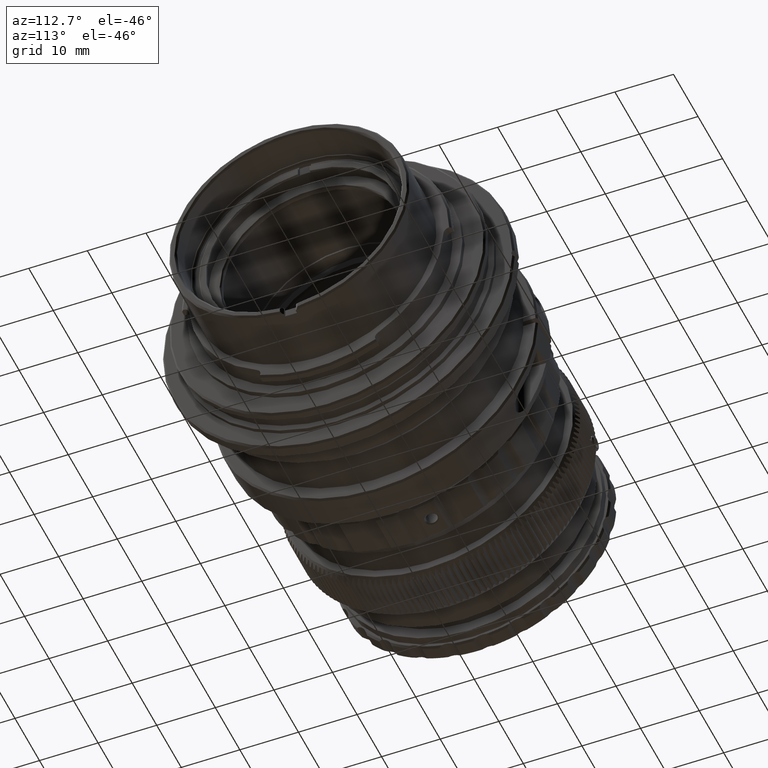
[diagram: clean part render]
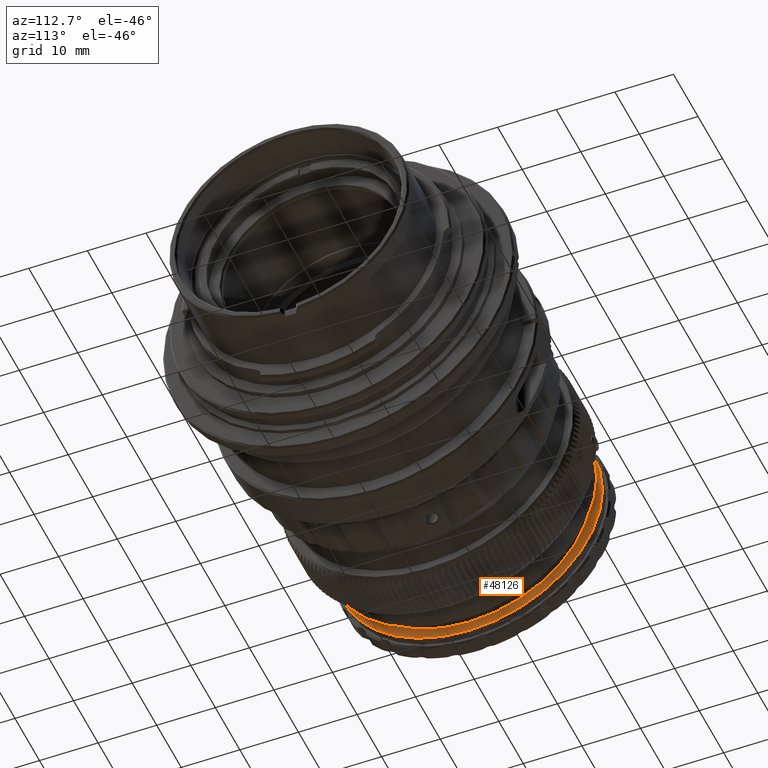
[diagram: same view with one face highlighted and labeled with its STEP entity id]
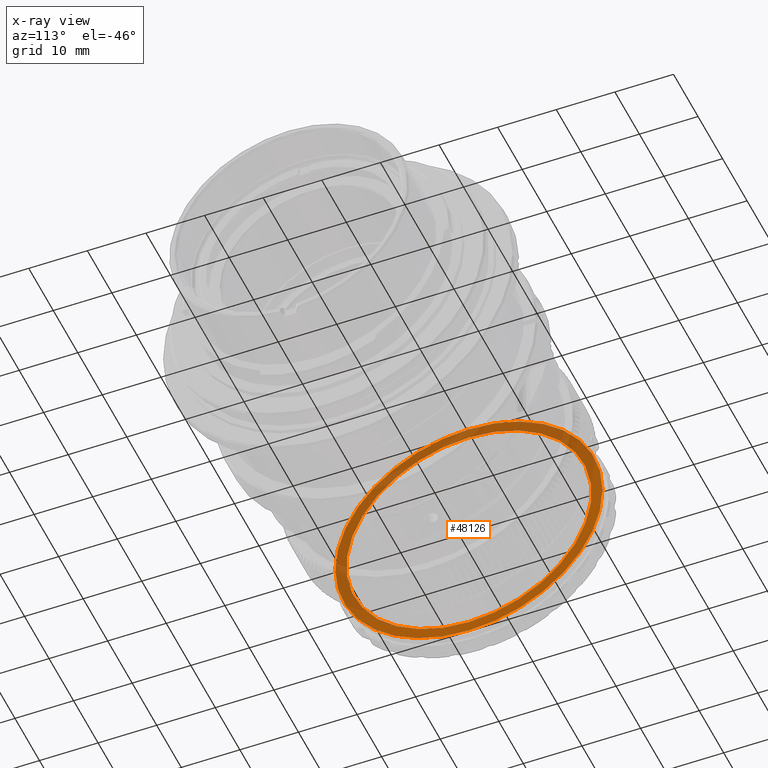
[diagram: x-ray of the same camera — body ghosted, the highlighted face saturated]
A machine part, auxiliary view. The second image highlights one B-rep face of the part: STEP entity #48126.
The next image is the same camera in x-ray: the body ghosted, the highlighted face saturated — about 54% of this face is hidden behind the body in this view.
In plain terms, the highlighted planar face has unit normal (-1, 0, 0).
Its self-contained STEP definition (entity closure, byte-faithful):
#2214 = EDGE_LOOP ( 'NONE', ( #20485, #35007 ) ) ;
#2299 = AXIS2_PLACEMENT_3D ( 'NONE', #47361, #38848, #43085 ) ;
#5985 = DIRECTION ( 'NONE',  ( -1.000000000000000000, -0.0000000000000000000, -0.0000000000000000000 ) ) ;
#12124 = ORIENTED_EDGE ( 'NONE', *, *, #31190, .F. ) ;
#15069 = CARTESIAN_POINT ( 'NONE',  ( -57.78904247734860200, -2.168404344971008900E-016, 0.0000000000000000000 ) ) ;
#20079 = FACE_OUTER_BOUND ( 'NONE', #34891, .T. ) ;
#20239 = ORIENTED_EDGE ( 'NONE', *, *, #58389, .F. ) ;
#20442 = CARTESIAN_POINT ( 'NONE',  ( -57.78904247734860200, 2.342671375720867400E-015, -20.89999999999999900 ) ) ;
#20485 = ORIENTED_EDGE ( 'NONE', *, *, #30541, .F. ) ;
#21496 = CARTESIAN_POINT ( 'NONE',  ( -57.78904247734860200, -2.168404344971008900E-016, 22.80000000000000100 ) ) ;
#21756 = DIRECTION ( 'NONE',  ( 1.000000000000000000, 0.0000000000000000000, 0.0000000000000000000 ) ) ;
#23748 = FACE_BOUND ( 'NONE', #2214, .T. ) ;
#24300 = CARTESIAN_POINT ( 'NONE',  ( -57.78904247734860200, -2.168404344971008900E-016, 0.0000000000000000000 ) ) ;
#25619 = AXIS2_PLACEMENT_3D ( 'NONE', #54280, #21756, #58505 ) ;
#27446 = CIRCLE ( 'NONE', #25619, 20.89999999999999900 ) ;
#28638 = DIRECTION ( 'NONE',  ( 0.0000000000000000000, 0.0000000000000000000, 1.000000000000000000 ) ) ;
#28733 = PLANE ( 'NONE',  #37293 ) ;
#30541 = EDGE_CURVE ( 'NONE', #42275, #32595, #33261, .T. ) ;
#31190 = EDGE_CURVE ( 'NONE', #47929, #55085, #35387, .T. ) ;
#31537 = CARTESIAN_POINT ( 'NONE',  ( -57.78904247734860200, 20.89999999999999900, 0.0000000000000000000 ) ) ;
#32595 = VERTEX_POINT ( 'NONE', #20442 ) ;
#33261 = CIRCLE ( 'NONE', #33540, 20.89999999999999900 ) ;
#33540 = AXIS2_PLACEMENT_3D ( 'NONE', #24300, #56798, #52737 ) ;
#34891 = EDGE_LOOP ( 'NONE', ( #20239, #12124 ) ) ;
#35007 = ORIENTED_EDGE ( 'NONE', *, *, #45521, .F. ) ;
#35387 = CIRCLE ( 'NONE', #51000, 22.80000000000000100 ) ;
#35861 = CARTESIAN_POINT ( 'NONE',  ( -57.78904247734860200, 2.575354267558864400E-015, -22.80000000000000100 ) ) ;
#37293 = AXIS2_PLACEMENT_3D ( 'NONE', #31537, #51951, #47336 ) ;
#38848 = DIRECTION ( 'NONE',  ( -1.000000000000000000, -0.0000000000000000000, -0.0000000000000000000 ) ) ;
#42275 = VERTEX_POINT ( 'NONE', #56264 ) ;
#43085 = DIRECTION ( 'NONE',  ( 0.0000000000000000000, 0.0000000000000000000, 1.000000000000000000 ) ) ;
#44628 = CIRCLE ( 'NONE', #2299, 22.80000000000000100 ) ;
#45521 = EDGE_CURVE ( 'NONE', #32595, #42275, #27446, .T. ) ;
#47336 = DIRECTION ( 'NONE',  ( 0.0000000000000000000, 0.0000000000000000000, 1.000000000000000000 ) ) ;
#47361 = CARTESIAN_POINT ( 'NONE',  ( -57.78904247734860200, -2.168404344971008900E-016, 0.0000000000000000000 ) ) ;
#47929 = VERTEX_POINT ( 'NONE', #35861 ) ;
#48126 = ADVANCED_FACE ( 'NONE', ( #23748, #20079 ), #28733, .F. ) ;
#51000 = AXIS2_PLACEMENT_3D ( 'NONE', #15069, #5985, #28638 ) ;
#51951 = DIRECTION ( 'NONE',  ( -1.000000000000000000, 0.0000000000000000000, 0.0000000000000000000 ) ) ;
#52737 = DIRECTION ( 'NONE',  ( 0.0000000000000000000, 0.0000000000000000000, 1.000000000000000000 ) ) ;
#54280 = CARTESIAN_POINT ( 'NONE',  ( -57.78904247734860200, -2.168404344971008900E-016, 0.0000000000000000000 ) ) ;
#55085 = VERTEX_POINT ( 'NONE', #21496 ) ;
#56264 = CARTESIAN_POINT ( 'NONE',  ( -57.78904247734860200, -2.168404344971008900E-016, 20.89999999999999900 ) ) ;
#56798 = DIRECTION ( 'NONE',  ( 1.000000000000000000, 0.0000000000000000000, 0.0000000000000000000 ) ) ;
#58389 = EDGE_CURVE ( 'NONE', #55085, #47929, #44628, .T. ) ;
#58505 = DIRECTION ( 'NONE',  ( 0.0000000000000000000, 0.0000000000000000000, 1.000000000000000000 ) ) ;